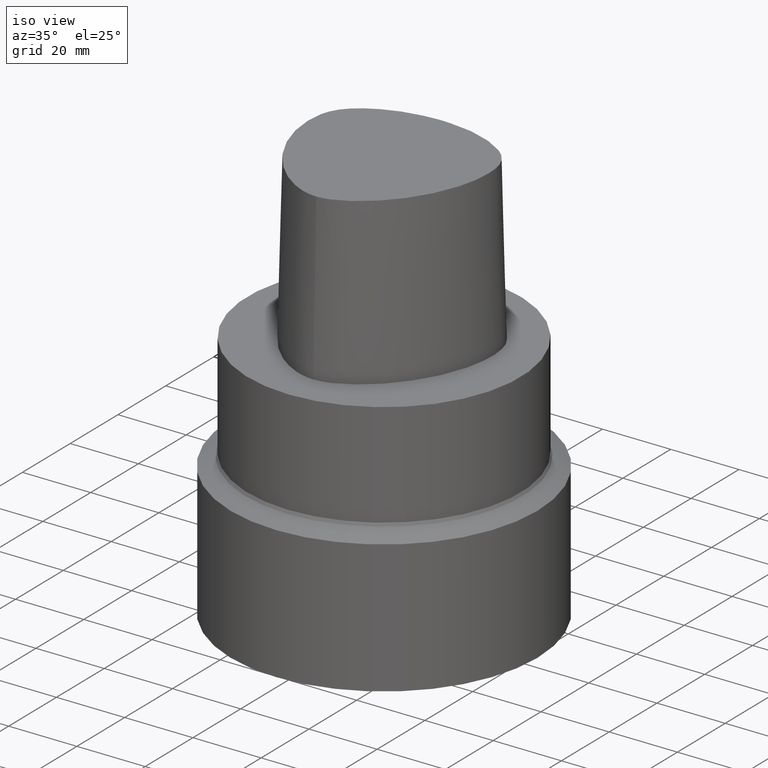
[diagram: clean part render]
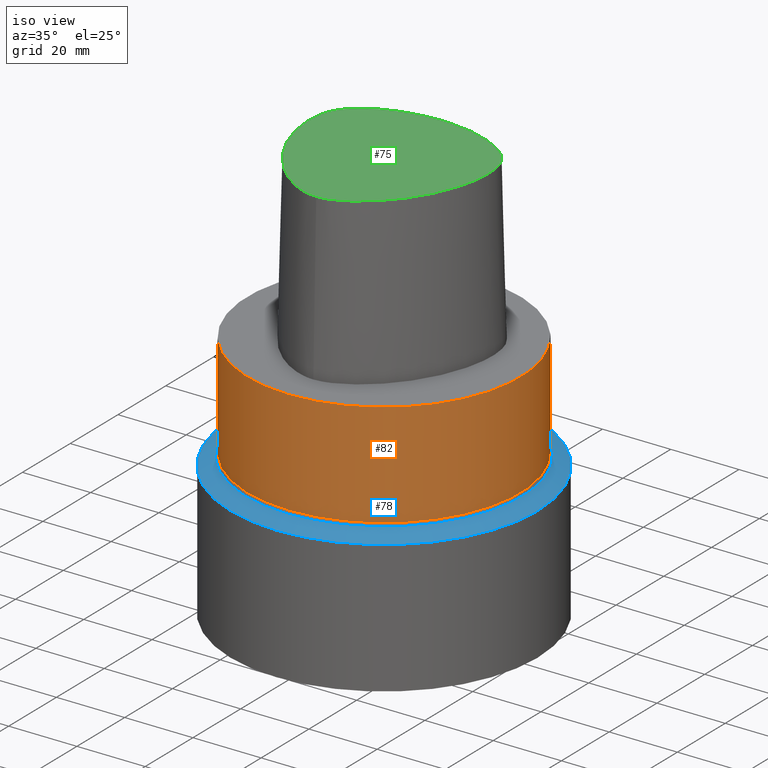
[diagram: same view with three faces highlighted in distinct colors, each labeled with its STEP entity id]
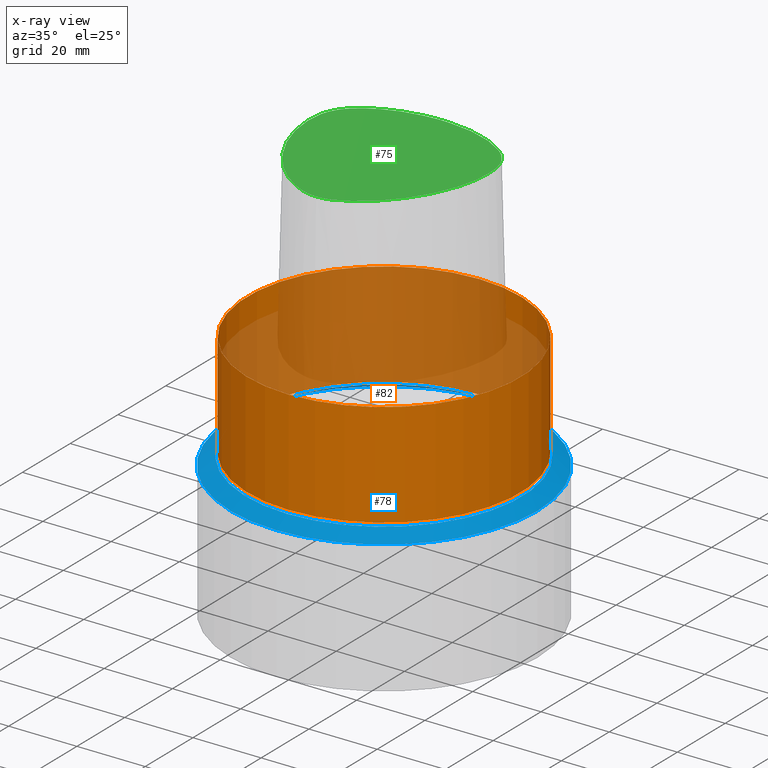
[diagram: x-ray of the same camera — body ghosted, the three highlighted faces saturated]
A machine part, iso view with three faces highlighted in distinct colors.
The next image is the same camera in x-ray (body ghosted, the three faces saturated) — at least one of them is partly hidden behind the body in this view.
Their STEP definitions:

[orange] entity #82 — the highlighted cylindrical surface (bore or boss wall) has radius 39.9925 mm, axis along (-0, -0, 1).
#82=ADVANCED_FACE('',(#102,#103),#104,.T.);
#102=FACE_BOUND('',#506,.T.);
#103=FACE_BOUND('',#507,.T.);
#104=CYLINDRICAL_SURFACE('',#508,39.9925);
#506=EDGE_LOOP('',(#541));
#507=EDGE_LOOP('',(#542));
#508=AXIS2_PLACEMENT_3D('',#543,#544,#545);
#541=ORIENTED_EDGE('',*,*,#550,.F.);
#542=ORIENTED_EDGE('',*,*,#553,.T.);
#543=CARTESIAN_POINT('',(9.36727891506091E-016,1.87345578301218E-015,-15.297927405));
#544=DIRECTION('',(-6.12323399573677E-017,-1.22464679914735E-016,1.0));
#545=DIRECTION('',(-1.23259516440783E-032,1.0,1.22464679914735E-016));
#550=EDGE_CURVE('',#561,#561,#562,.T.);
#553=EDGE_CURVE('',#567,#567,#568,.T.);
#561=VERTEX_POINT('',#722);
#562=CIRCLE('',#723,39.9925);
#567=VERTEX_POINT('',#728);
#568=CIRCLE('',#729,39.9925);
#722=CARTESIAN_POINT('',(1.87345578301218E-015,39.9925,-30.59585481));
#723=AXIS2_PLACEMENT_3D('',#733,#734,#735);
#728=CARTESIAN_POINT('',(-4.92945621125802E-031,39.9925,4.89766871149005E-015));
#729=AXIS2_PLACEMENT_3D('',#742,#743,#744);
#733=CARTESIAN_POINT('',(1.87345578301218E-015,3.74691156602436E-015,-30.59585481));
#734=DIRECTION('',(6.12323399573677E-017,1.22464679914735E-016,-1.0));
#735=DIRECTION('',(-1.23259516440783E-032,1.0,1.22464679914735E-016));
#742=CARTESIAN_POINT('',(0.0,0.0,0.0));
#743=DIRECTION('',(6.12323399573677E-017,1.22464679914735E-016,-1.0));
#744=DIRECTION('',(-1.23259516440783E-032,1.0,1.22464679914735E-016));

[blue] entity #78 — the highlighted conical surface has half-angle 60 deg.
#78=ADVANCED_FACE('',(#91,#92),#93,.T.);
#91=FACE_BOUND('',#495,.T.);
#92=FACE_BOUND('',#496,.T.);
#93=CONICAL_SURFACE('',#497,42.74625,1.04719755102182);
#495=EDGE_LOOP('',(#522));
#496=EDGE_LOOP('',(#523));
#497=AXIS2_PLACEMENT_3D('',#524,#525,#526);
#522=ORIENTED_EDGE('',*,*,#551,.F.);
#523=ORIENTED_EDGE('',*,*,#549,.T.);
#524=CARTESIAN_POINT('',(2.00616025955807E-015,4.01232051911613E-015,-32.7630833797113));
#525=DIRECTION('',(6.12323399573676E-017,1.22464679914735E-016,-1.0));
#526=DIRECTION('',(-1.23259516440783E-032,1.0,1.22464679914735E-016));
#549=EDGE_CURVE('',#559,#559,#560,.T.);
#551=EDGE_CURVE('',#563,#563,#564,.T.);
#559=VERTEX_POINT('',#720);
#560=CIRCLE('',#721,40.4925);
#563=VERTEX_POINT('',#724);
#564=CIRCLE('',#725,45.0);
#720=CARTESIAN_POINT('',(1.9264845447167E-015,40.4925,-31.46188021));
#721=AXIS2_PLACEMENT_3D('',#730,#731,#732);
#724=CARTESIAN_POINT('',(2.08583597439944E-015,45.0,-34.0642865494227));
#725=AXIS2_PLACEMENT_3D('',#736,#737,#738);
#730=CARTESIAN_POINT('',(1.9264845447167E-015,3.8529690894334E-015,-31.46188021));
#731=DIRECTION('',(6.12323399573677E-017,1.22464679914735E-016,-1.0));
#732=DIRECTION('',(-1.23259516440783E-032,1.0,1.22464679914735E-016));
#736=CARTESIAN_POINT('',(2.08583597439944E-015,4.17167194879887E-015,-34.0642865494227));
#737=DIRECTION('',(6.12323399573677E-017,1.22464679914735E-016,-1.0));
#738=DIRECTION('',(-1.23259516440783E-032,1.0,1.22464679914735E-016));

[green] entity #75 — the highlighted planar face has unit normal (-0, 0, 1).
#75=ADVANCED_FACE('',(#84),#85,.T.);
#84=FACE_OUTER_BOUND('',#105,.T.);
#85=PLANE('',#106);
#105=EDGE_LOOP('',(#509));
#106=AXIS2_PLACEMENT_3D('',#510,#511,#512);
#509=ORIENTED_EDGE('',*,*,#546,.F.);
#510=CARTESIAN_POINT('',(0.00157137799364468,-2.6153184570779,48.0));
#511=DIRECTION('',(-0.0,2.95577857036584E-049,1.0));
#512=DIRECTION('',(1.0,0.0,0.0));
#546=EDGE_CURVE('',#554,#554,#555,.T.);
#554=VERTEX_POINT('',#569);
#555=B_SPLINE_CURVE_WITH_KNOTS('',3,(#570,#571,#572,#573,#574,#575,#576,#577,#578,#579,#580,#581,#582,#583,#584,#585,#586,#587,#588,#589,#590,#591,#592,#593,#594,#595,#596,#597,#598,#599,#600,#601,#602,#603,#604,#605,#606,#607,#608,#609,#610,#611,#612,#613,#614,#615,#616,#617,#618),.UNSPECIFIED.,.T.,.F.,(4,1,1,1,1,1,1,1,1,1,1,1,1,1,1,1,1,1,1,1,1,1,1,1,1,1,1,1,1,1,1,1,1,1,1,1,1,1,1,1,1,1,1,1,1,1,4),(0.0,0.023351915855444,0.046587266388789,0.069240176568065,0.091148511555983,0.1123498082883,0.132988344921176,0.153259056323784,0.173379606256739,0.193575406900779,0.21406817556902,0.235062876490599,0.256724107877353,0.279134072148509,0.302211911987387,0.325585720772129,0.348897942793447,0.372235827811492,0.395117449062017,0.417273776916591,0.438690480917031,0.459517607941485,0.479887726529216,0.499920279645309,0.520109124362118,0.540479544703226,0.561306546843113,0.582722343807168,0.604879209617679,0.627760890760907,0.651098683894914,0.674411064884055,0.697926557694984,0.721709534344695,0.743275604228345,0.764936939065916,0.785931598379216,0.806424124397203,0.826619873462382,0.846740294796301,0.867010839616641,0.887649545430403,0.908851158162203,0.930759261827623,0.953412277508376,0.976648149620789,1.0),.UNSPECIFIED.);
#569=CARTESIAN_POINT('',(-7.10564420632981E-015,-28.3748931426529,48.0));
#570=CARTESIAN_POINT('',(-7.10564420632981E-015,-28.3748931426529,48.0));
#571=CARTESIAN_POINT('',(-1.28829169155133,-28.3993673758179,48.0));
#572=CARTESIAN_POINT('',(-3.85959979030208,-27.8581705845853,48.0));
#573=CARTESIAN_POINT('',(-7.35807000570215,-26.3039671919376,48.0));
#574=CARTESIAN_POINT('',(-10.5217929466077,-24.2824556046413,48.0));
#575=CARTESIAN_POINT('',(-13.3353105701073,-21.9813369841311,48.0));
#576=CARTESIAN_POINT('',(-15.8288917398101,-19.4930169713482,48.0));
#577=CARTESIAN_POINT('',(-18.0343115007326,-16.8644361083806,48.0));
#578=CARTESIAN_POINT('',(-19.9811550180694,-14.112279200302,48.0));
#579=CARTESIAN_POINT('',(-21.692701668163,-11.2365503175383,48.0));
#580=CARTESIAN_POINT('',(-23.1773804507421,-8.22359439294641,48.0));
#581=CARTESIAN_POINT('',(-24.4321787442301,-5.05562842604973,48.0));
#582=CARTESIAN_POINT('',(-25.4341273198745,-1.71333919058597,48.0));
#583=CARTESIAN_POINT('',(-26.1351255888409,1.81352567250145,48.0));
#584=CARTESIAN_POINT('',(-26.4570368424595,5.51539373422401,48.0));
#585=CARTESIAN_POINT('',(-26.2640433000089,9.31895598900793,48.0));
#586=CARTESIAN_POINT('',(-25.3673970515537,13.117459349598,48.0));
#587=CARTESIAN_POINT('',(-23.1650593293068,16.3935410203794,48.0));
#588=CARTESIAN_POINT('',(-20.166041033419,18.8340538748086,48.0));
#589=CARTESIAN_POINT('',(-16.8920892201408,20.7294372455208,48.0));
#590=CARTESIAN_POINT('',(-13.5034428612199,22.1513818197868,48.0));
#591=CARTESIAN_POINT('',(-10.1051230998292,23.2053592739476,48.0));
#592=CARTESIAN_POINT('',(-6.71054806820375,23.893087183621,48.0));
#593=CARTESIAN_POINT('',(-3.3440966300513,24.1872106166354,48.0));
#594=CARTESIAN_POINT('',(-0.00436859656821,24.4542290901542,48.0));
#595=CARTESIAN_POINT('',(3.33552046318777,24.1878714828122,48.0));
#596=CARTESIAN_POINT('',(6.7106009616545,23.893485017694,48.0));
#597=CARTESIAN_POINT('',(10.1051559974891,23.2054948559444,48.0));
#598=CARTESIAN_POINT('',(13.5030031791571,22.150447002949,48.0));
#599=CARTESIAN_POINT('',(16.8923744626256,20.7297323497337,48.0));
#600=CARTESIAN_POINT('',(20.1652365808761,18.8339154382717,48.0));
#601=CARTESIAN_POINT('',(23.1681374732146,16.3939826803799,48.0));
#602=CARTESIAN_POINT('',(25.3601741943936,13.1089864874231,48.0));
#603=CARTESIAN_POINT('',(26.321105227627,9.27241325382508,48.0));
#604=CARTESIAN_POINT('',(26.4002391162146,5.46231423864461,48.0));
#605=CARTESIAN_POINT('',(26.1401991546312,1.76738885478758,48.0));
#606=CARTESIAN_POINT('',(25.4303705179883,-1.71324147084198,48.0));
#607=CARTESIAN_POINT('',(24.4327446070836,-5.05553218816385,48.0));
#608=CARTESIAN_POINT('',(23.1773594553093,-8.22370834660234,48.0));
#609=CARTESIAN_POINT('',(21.6921674973232,-11.2362273073486,48.0));
#610=CARTESIAN_POINT('',(19.9813729987982,-14.1124293711817,48.0));
#611=CARTESIAN_POINT('',(18.033984509433,-16.8641649241506,48.0));
#612=CARTESIAN_POINT('',(15.8290011220936,-19.4932243550181,48.0));
#613=CARTESIAN_POINT('',(13.3355411347684,-21.9812451369777,48.0));
#614=CARTESIAN_POINT('',(10.5217064911847,-24.2838945753292,48.0));
#615=CARTESIAN_POINT('',(7.35804941740046,-26.2980532430341,48.0));
#616=CARTESIAN_POINT('',(3.85974088767426,-27.8813814221605,48.0));
#617=CARTESIAN_POINT('',(1.28828807932148,-28.350418978111,48.0));
#618=CARTESIAN_POINT('',(-6.51692220632981E-015,-28.3748931426529,48.0));